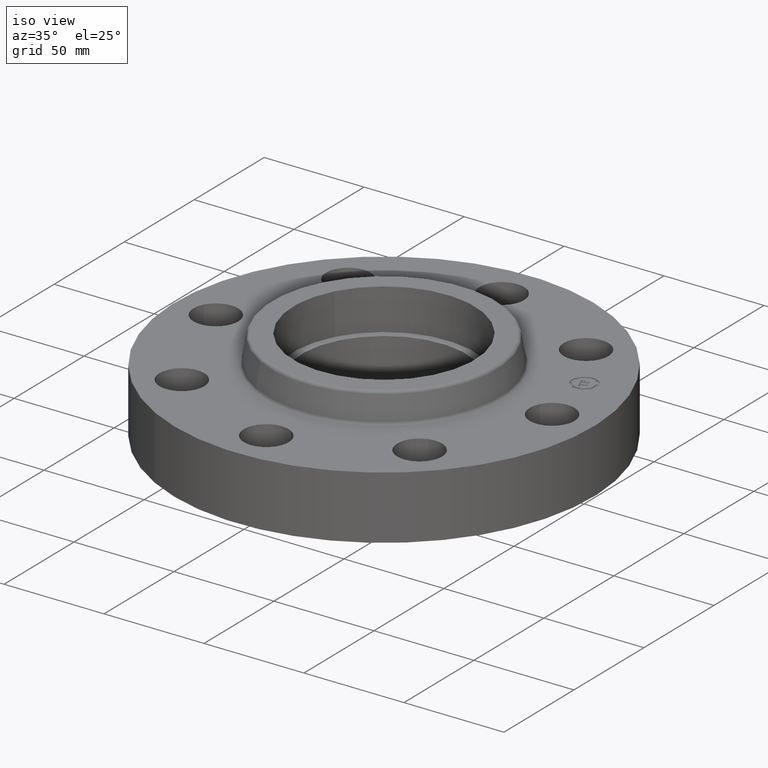
[diagram: clean part render]
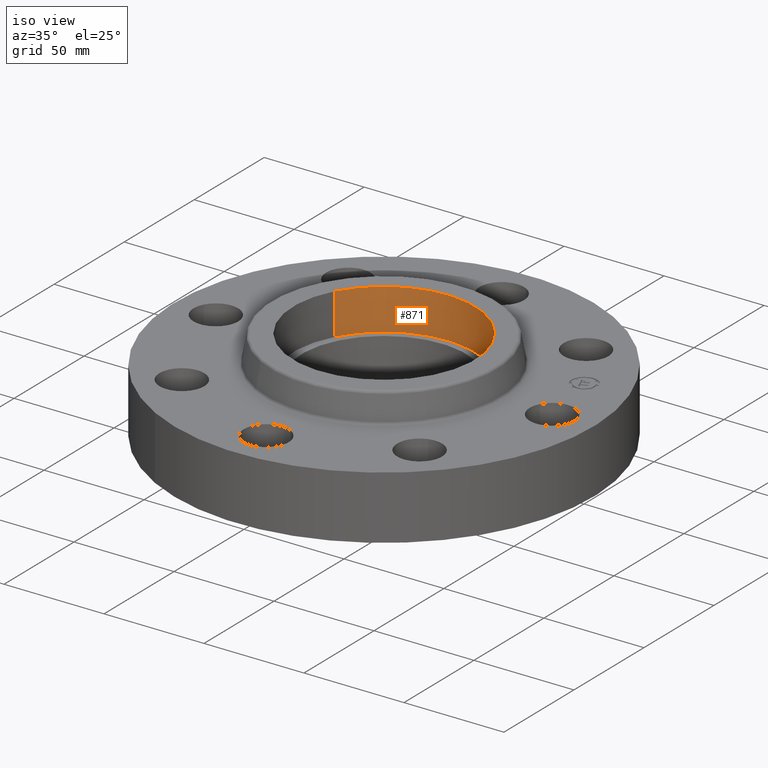
[diagram: same view with one face highlighted and labeled with its STEP entity id]
A machine part, iso view. The second image highlights one B-rep face of the part: STEP entity #871.
In plain terms, the highlighted cylindrical surface (partial cylindrical patch) has radius 45.339 mm, axis along (0, 0, -1).
Its self-contained STEP definition (entity closure, byte-faithful):
#42=AXIS2_PLACEMENT_3D('Circle Axis2P3D',#40,#41,$) ;
#489=AXIS2_PLACEMENT_3D('Circle Axis2P3D',#487,#488,$) ;
#853=AXIS2_PLACEMENT_3D('Cylinder Axis2P3D',#850,#851,#852) ;
#40=CARTESIAN_POINT('Axis2P3D Location',(0.,-6.99353086378E-017,1.)) ;
#44=CARTESIAN_POINT('Vertex',(-1.56648487298,0.855774586412,1.)) ;
#46=CARTESIAN_POINT('Vertex',(1.56648487298,-0.855774586412,1.)) ;
#487=CARTESIAN_POINT('Axis2P3D Location',(2.09805925913E-016,-5.59482469102E-016,1.81000000001)) ;
#491=CARTESIAN_POINT('Vertex',(-1.56648487298,0.855774586412,1.81000000001)) ;
#493=CARTESIAN_POINT('Vertex',(1.56648487298,-0.855774586412,1.81000000001)) ;
#850=CARTESIAN_POINT('Axis2P3D Location',(0.,-6.99353086378E-017,1.80606299213)) ;
#855=CARTESIAN_POINT('Line Origine',(-1.56648487298,0.855774586412,1.40500000001)) ;
#860=CARTESIAN_POINT('Line Origine',(1.56648487298,-0.855774586412,1.40500000001)) ;
#41=DIRECTION('Axis2P3D Direction',(0.,0.,-0.0393700787402)) ;
#488=DIRECTION('Axis2P3D Direction',(0.,0.,-0.0393700787402)) ;
#851=DIRECTION('Axis2P3D Direction',(0.,0.,-0.0393700787402)) ;
#852=DIRECTION('Axis2P3D XDirection',(0.0345504945626,-0.0188750212049,0.)) ;
#856=DIRECTION('Vector Direction',(0.,0.,-0.0393700787402)) ;
#861=DIRECTION('Vector Direction',(0.,0.,-0.0393700787402)) ;
#857=VECTOR('Line Direction',#856,0.0393700787402) ;
#862=VECTOR('Line Direction',#861,0.0393700787402) ;
#866=ORIENTED_EDGE('',*,*,#495,.F.) ;
#867=ORIENTED_EDGE('',*,*,#859,.F.) ;
#868=ORIENTED_EDGE('',*,*,#48,.T.) ;
#869=ORIENTED_EDGE('',*,*,#864,.T.) ;
#871=ADVANCED_FACE('PartBody',(#870),#854,.F.) ;
#43=CIRCLE('generated circle',#42,1.78500000001) ;
#490=CIRCLE('generated circle',#489,1.78500000001) ;
#854=CYLINDRICAL_SURFACE('generated cylinder',#853,1.78500000001) ;
#48=EDGE_CURVE('',#45,#47,#43,.T.) ;
#495=EDGE_CURVE('',#492,#494,#490,.T.) ;
#859=EDGE_CURVE('',#45,#492,#858,.F.) ;
#864=EDGE_CURVE('',#47,#494,#863,.F.) ;
#865=EDGE_LOOP('',(#866,#867,#868,#869)) ;
#870=FACE_OUTER_BOUND('',#865,.T.) ;
#858=LINE('Line',#855,#857) ;
#863=LINE('Line',#860,#862) ;
#45=VERTEX_POINT('',#44) ;
#47=VERTEX_POINT('',#46) ;
#492=VERTEX_POINT('',#491) ;
#494=VERTEX_POINT('',#493) ;